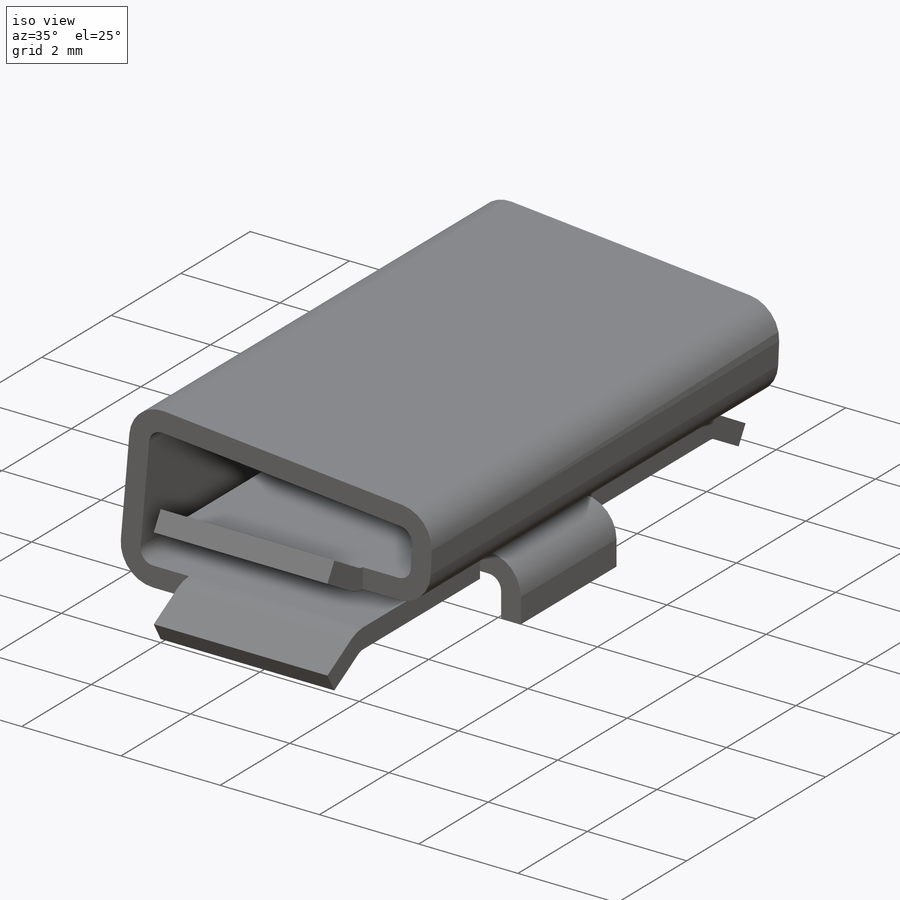
[diagram: iso view]
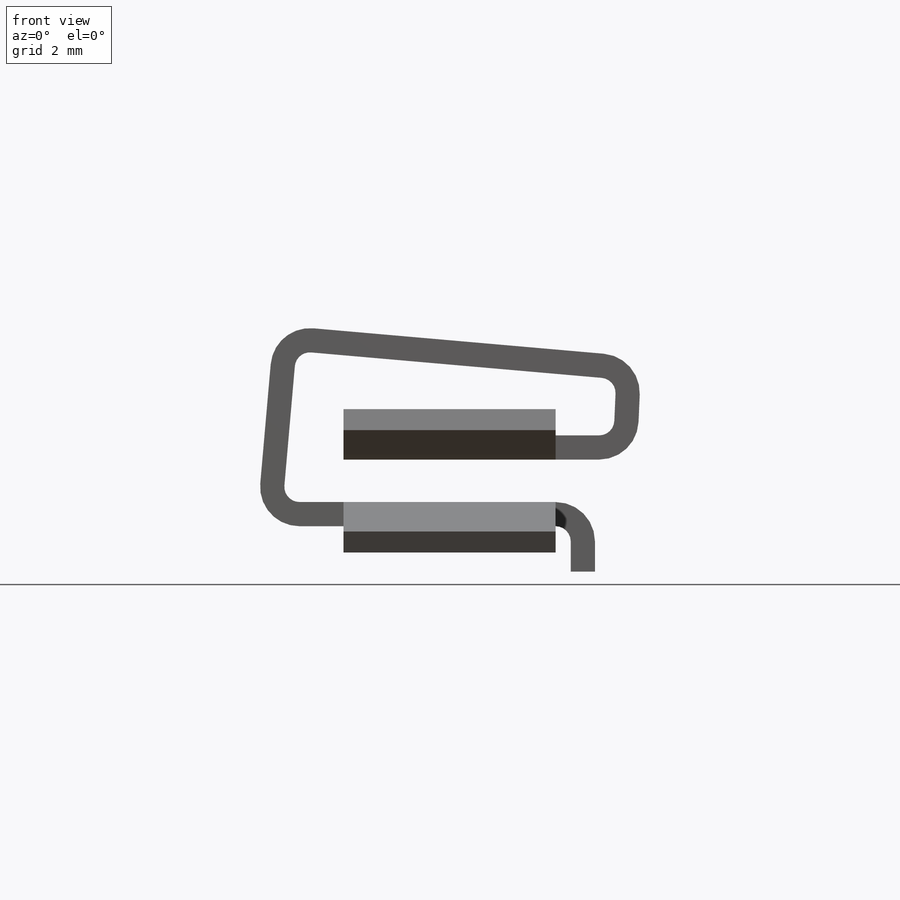
[diagram: front view]
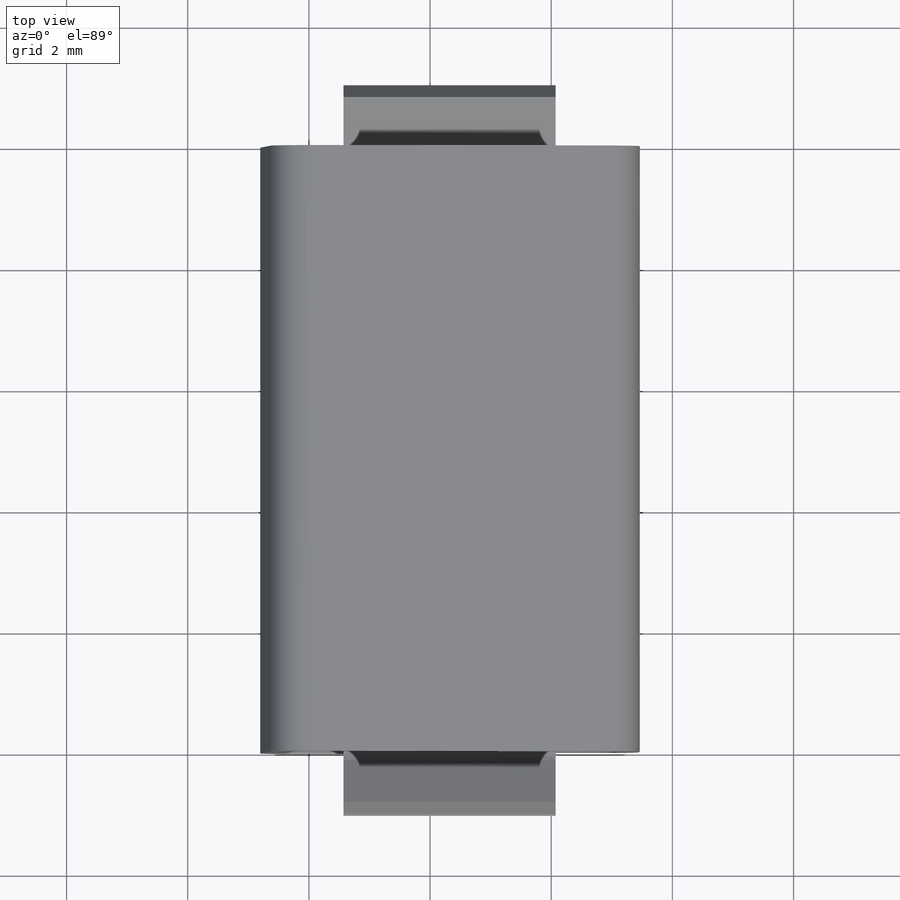
[diagram: top view]
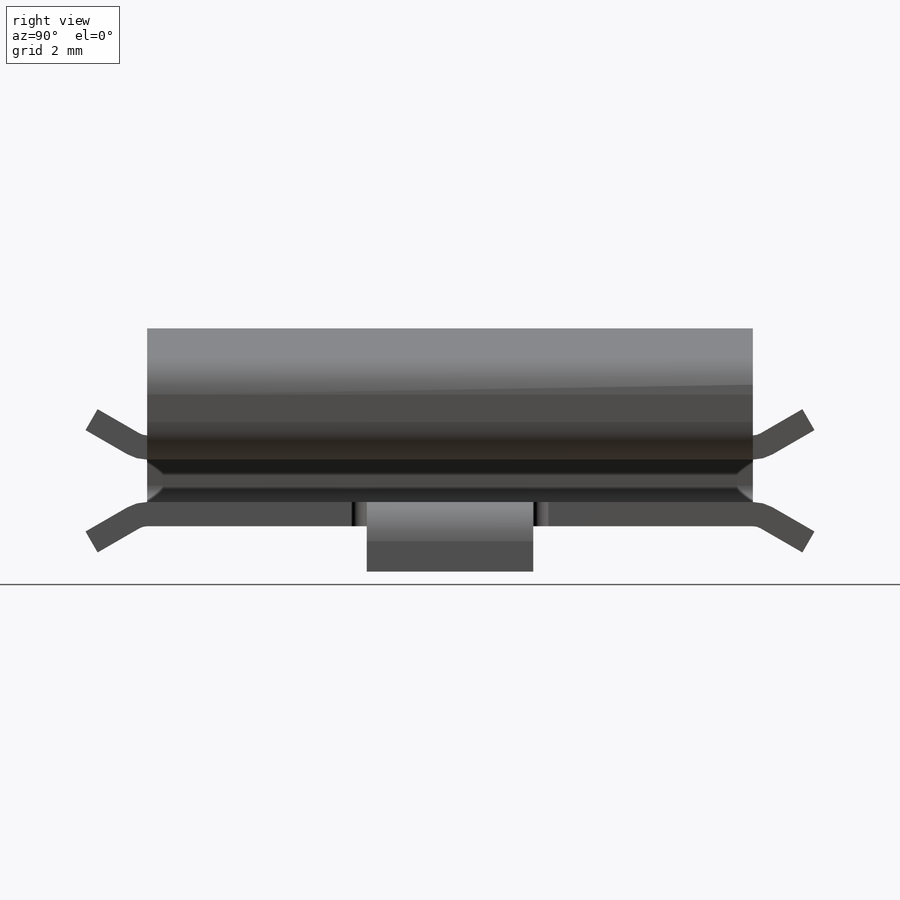
[diagram: right view]
SOLIDWORKS PART (.sldprt)
format: sldprt  version: not decoded by parser v0  size: 1,255,936 bytes
history: native  units: mm
features: sketch x22, sheet_metal_op x13, cut_extrude x4, plane x3, mirror x2, material x1 + 6 further entries (+12 scaffold rows collapsed; 6 parser-record rows omitted)
feature tree (69):
  scaffold x12  (default folders/planes/origin — collapsed)
  material  "Material <not specified>"
  sketch  "Sketch1"  dims[c1.D1=2.5mm c1.D2=5.0mm c1.D3=~5.578127mm c2.D3=90.0deg c3.D3=~1483.529864mm c3.D4=4.0mm c3.D5=~1614.429558mm c3.D6=5.0mm c3.D2=1.1mm c4.D6=~15.240274mm c4.D7=~3.782111mm c4.D8=~3.984779mm c5.D6=~16.057004mm c5.D7=~2.151377mm c5.D8=~2.151377mm c6.D7=~2.151377mm c6.D8=~2.151377mm c6.D6=~4.438118mm c7.D7=~3.984779mm c7.D8=~3.984779mm c8.D7=~3.984779mm c8.D8=~3.984779mm c9.D7=~3.984779mm c9.D8=~3.984779mm c10.D7=~3.984779mm c10.D8=~3.984779mm c11.D7=~3.984779mm c11.D8=~3.984779mm c12.D7=~3.984779mm c12.D8=~3.984779mm c12.D4=4.5mm c12.D6=5.5mm c13.D7=3.5mm c13.D1=0.2mm c13.D2=0.5 c13.D3=0.0deg c13.D6=~28.64789deg]
  sheet_metal_op  "Base-Flange1"
  sheet_metal_op  "BaseBend2"
  sheet_metal_op  "BaseBend3"
  sheet_metal_op  "BaseBend4"
  sketch  "Sketch7"  dims[D1=0.25mm D2=3.0mm D3=0.25mm]
  cut_extrude  "Cut-Extrude1"  [1 undecoded]
  plane  "Plane1"
  sketch  "Sketch11"  dims[D1=0.75mm]
  sheet_metal_op  "Miterbend1"
  plane  "Plane2"
  sketch  "Sketch12"  dims[D1=~523.598776mm D2=0.75mm]
  sheet_metal_op  "Miterbend4"
  plane  "Plane3"
  sketch  "Sketch16"  dims[D1=~523.598776mm]
  sheet_metal_op  "Miterbend5"
  sketch  "Sketch20"
  cut_extrude  "Cut-Extrude8"  [1 undecoded]
  sketch  "Sketch23"
  cut_extrude  "Cut-Extrude9"  [1 undecoded]
  sketch  "Sketch26"
  cut_extrude  "Cut-Extrude10"  [1 undecoded]
  mirror  "Mirror1"
  mirror  "MirrorBend2"
  sketch  "Bend-Lines1"
  sketch  "Bounding-Box1"
  sheet_metal_op  "Sheet-Metal(1)"
  "Flat-Pattern(1)"
  sketch  "Bend-Lines2"
  sketch  "Bounding-Box2"
  parser-record x6  (decoder bookkeeping rows leaked as tree rows — omitted from the tree; the rows remain in map.json)
  sheet_metal_op  "Sheet-Metal(2)"
  "Flat-Pattern(1)"
  sketch  "Bend-Lines3"
  sketch  "Bounding-Box3"
  sheet_metal_op  "Sheet-Metal(3)"
  "Flat-Pattern(1)"
  sketch  "Bend-Lines4"
  sketch  "Bounding-Box4"
  sheet_metal_op  "Sheet-Metal(4)"
  "Flat-Pattern(1)"
  sketch  "Bend-Lines5"
  sketch  "Bounding-Box5"
  sheet_metal_op  "Sheet-Metal(5)"
  "Flat-Pattern(1)"
  sketch  "Bend-Lines6"
  sketch  "Bounding-Box6"
  sheet_metal_op  "Sheet-Metal(6)"
  "Flat-Pattern(6)"
  sketch  "Bend-Lines7"
  sketch  "Bounding-Box7"
decode coverage: 5 of 41 modeling features carry decoded parameters; 6 rows unclassified (native names shown)
note: ~ marks probable driven/reference dimensions
note: 4 parameter values undecoded
summary: no parameter record found for 4 features
note: suppression state not decoded; provenance and decode notes live in map.json
